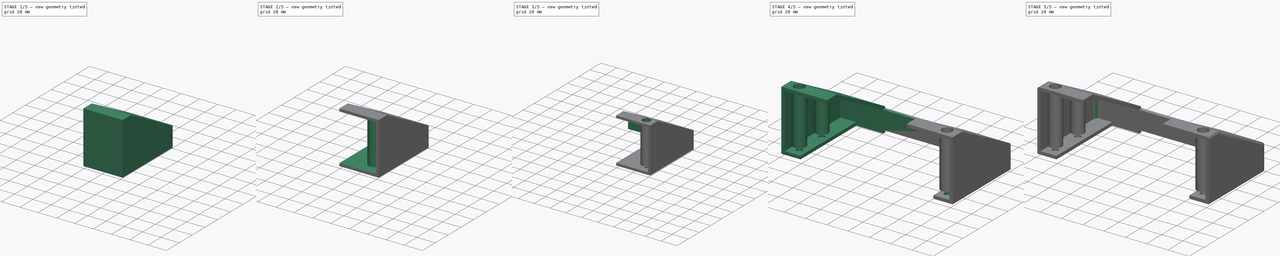
[diagram: build sequence overview — one tinted view per stage of 5, left to right]
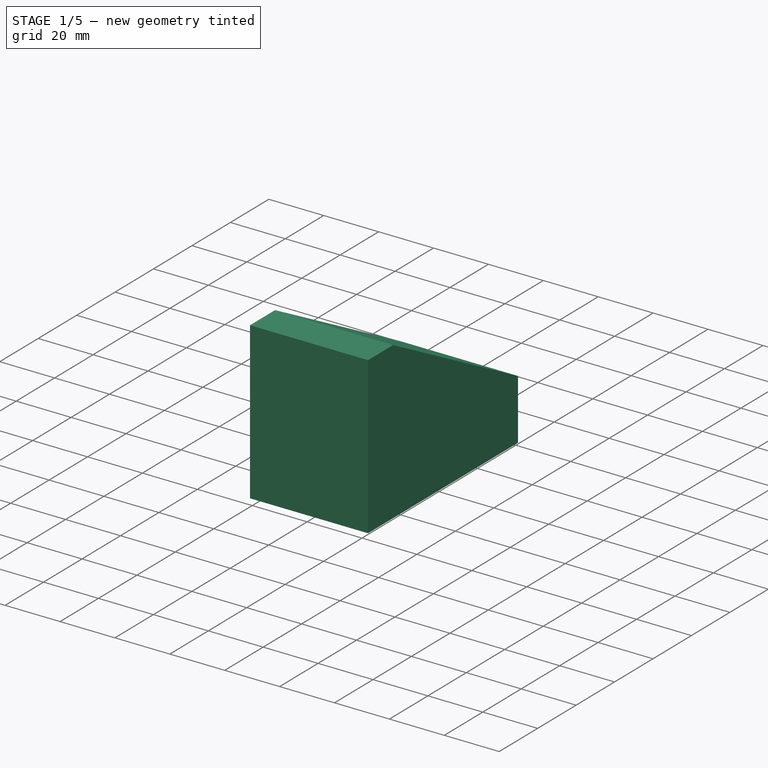
[diagram: stage 1 of 5 — iso view after this stage's code; geometry added in this stage tinted green]
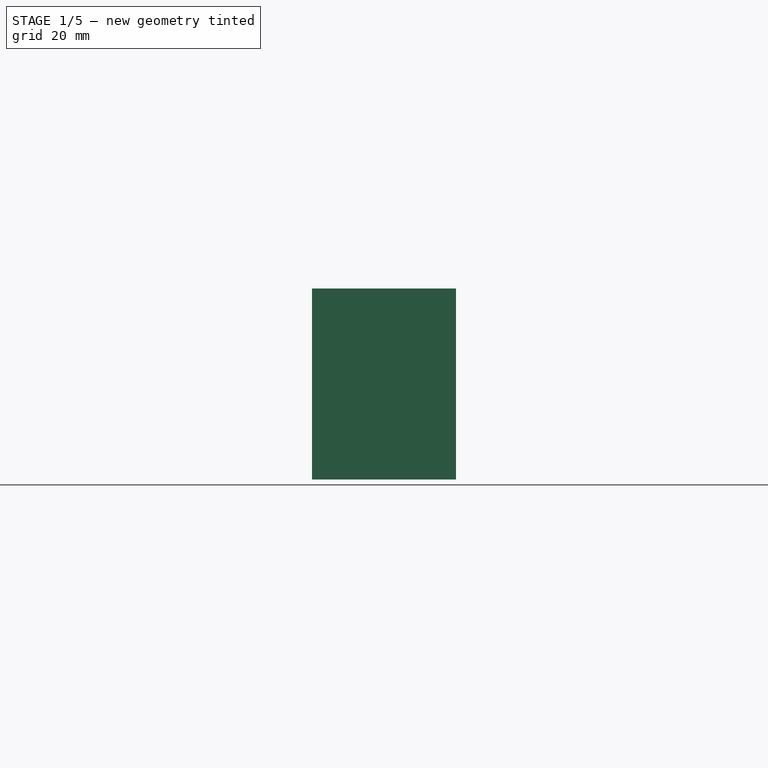
[diagram: stage 1 of 5 — front view after this stage's code; geometry added in this stage tinted green]
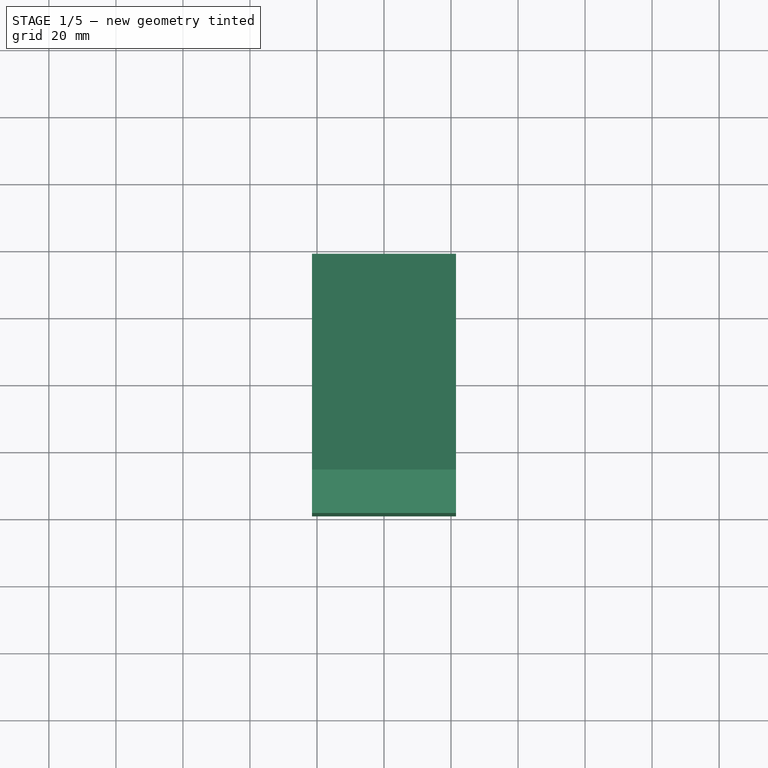
[diagram: stage 1 of 5 — top view after this stage's code; geometry added in this stage tinted green]
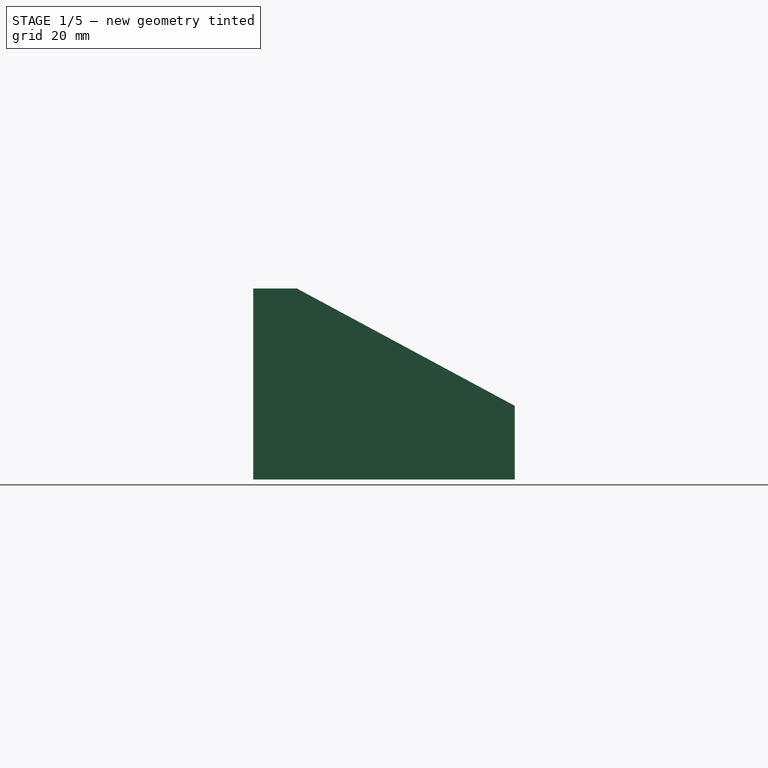
[diagram: stage 1 of 5 — right view after this stage's code; geometry added in this stage tinted green]
FCSTD DOCUMENT  (FreeCAD 0.21R33771 (Git))
Label: rearhull2
License: All rights reserved
LicenseURL: http://en.wikipedia.org/wiki/All_rights_reserved
objects: Sketcher::SketchObject×7, PartDesign::Pad×4, PartDesign::Pocket×4, PartDesign::Fillet×3, PartDesign::Plane×2, PartDesign::Hole×2, App::DocumentObjectGroupPython×1, PartDesign::Thickness×1, PartDesign::Mirrored×1, PartDesign::Body×1
note: 39 computed .brp shape members not serialized (recipe doc carries the construction recipe); baked Part::Feature solids carry a one-line shape summary decoded from their .brp

FEATURE [App::DocumentObjectGroupPython] ExplodedAssembly  # scripted group (container) (typed FeaturePython)
  AnimationStep = 0
  CurrentTrajectory = 0
  InAnimation = false
  RemoveAllTrajectories = false
  ResetAnimation = false
FEATURE [Sketcher::SketchObject] Sketch  label="BaseSketch"
  FullyConstrained = true
  MapMode = 5
  Support = -> [XY_Plane]
  sketch-geometry (4):
    g0: LineSegment StartX=-21.5 StartY=39 StartZ=0 EndX=21.5 EndY=39 EndZ=0
    g1: LineSegment StartX=21.5 StartY=39 StartZ=0 EndX=21.5 EndY=-39 EndZ=0
    g2: LineSegment StartX=21.5 StartY=-39 StartZ=0 EndX=-21.5 EndY=-39 EndZ=0
    g3: LineSegment StartX=-21.5 StartY=-39 StartZ=0 EndX=-21.5 EndY=39 EndZ=0
  constraints (11):
    c: Coincident(g0,g1)
    c: Coincident(g1,g2)
    c: Coincident(g2,g3)
    c: Coincident(g3,g0)
    c: Horizontal(g0)
    c: Horizontal(g2)
    c: Vertical(g1)
    c: Vertical(g3)
    c: DistanceY(g3,g3) = 78
    c: DistanceX(g2,g2) = 43
    c: Symmetric(g0,g1,g-1)
FEATURE [PartDesign::Pad] Pad
  Direction = (0,0,1)
  Length = 50
  Length2 = 10
  Profile = -> Sketch
  ReferenceAxis = -> Sketch [N_Axis]
  Type = 0
FEATURE [Sketcher::SketchObject] Sketch001  label="TopCutSketch001"
  FullyConstrained = true
  MapMode = 5
  Placement = pos=(0,0,0) rot=(0.57735,0.57735,0.57735;2.0944rad)
  Support = -> [YZ_Plane]
  sketch-geometry (7):
    g0: LineSegment StartX=-39 StartY=0 StartZ=0 EndX=39 EndY=0 EndZ=0
    g1: LineSegment StartX=39 StartY=0 StartZ=0 EndX=39 EndY=15 EndZ=0
    g2: LineSegment StartX=39 StartY=15 StartZ=0 EndX=-26 EndY=50 EndZ=0
    g3: LineSegment StartX=-26 StartY=50 StartZ=0 EndX=-39 EndY=50 EndZ=0
    g4: LineSegment StartX=-39 StartY=50 StartZ=0 EndX=-39 EndY=0 EndZ=0
    g5: LineSegment StartX=-26 StartY=50 StartZ=0 EndX=39 EndY=50 EndZ=0
    g6: LineSegment StartX=39 StartY=50 StartZ=0 EndX=39 EndY=15 EndZ=0
  constraints (19):
    c: PointOnObject(g0,g-1)
    c: Coincident(g0,g1)
    c: Vertical(g1)
    c: Coincident(g1,g2)
    c: Coincident(g2,g3)
    c: Horizontal(g3)
    c: Coincident(g3,g4)
    c: Vertical(g4)
    c: Coincident(g4,g0)
    c: DistanceY(g4,g4) = 50
    c: DistanceX(g0,g0) = 78
    c: Symmetric(g0,g0,g-2)
    c: DistanceY(g1,g1) = 15
    c: DistanceX(g2,g1) = 65
    c: Coincident(g2,g5)
    c: Horizontal(g5)
    c: Coincident(g5,g6)
    c: Vertical(g6)
    c: Coincident(g6,g1)
FEATURE [PartDesign::Pocket] Pocket
  BaseFeature = -> Pad
  Direction = (-1,2e-16,-3e-16)
  Length = 5
  Length2 = 5
  Midplane = true
  Profile = -> Sketch001
  ReferenceAxis = -> Sketch001 [N_Axis]
  Type = 1
FEATURE [PartDesign::Pad] Pad001
  BaseFeature = -> Pocket
  Direction = (0,0,-1)
  Length = 7
  Length2 = 10
  Profile = -> Pocket [Face2]
  Refine = true
  Type = 0
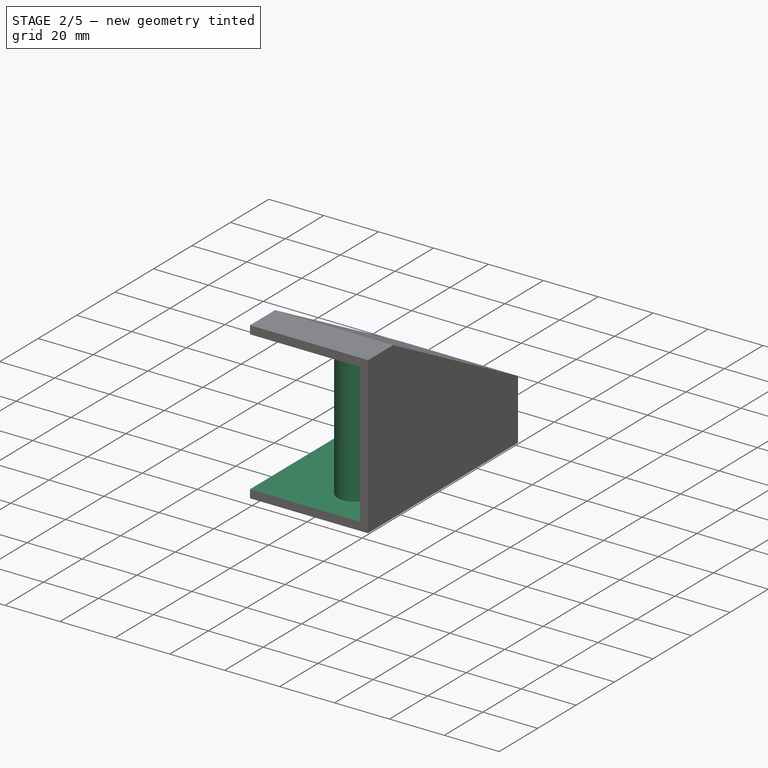
[diagram: stage 2 of 5 — iso view after this stage's code; geometry added in this stage tinted green]
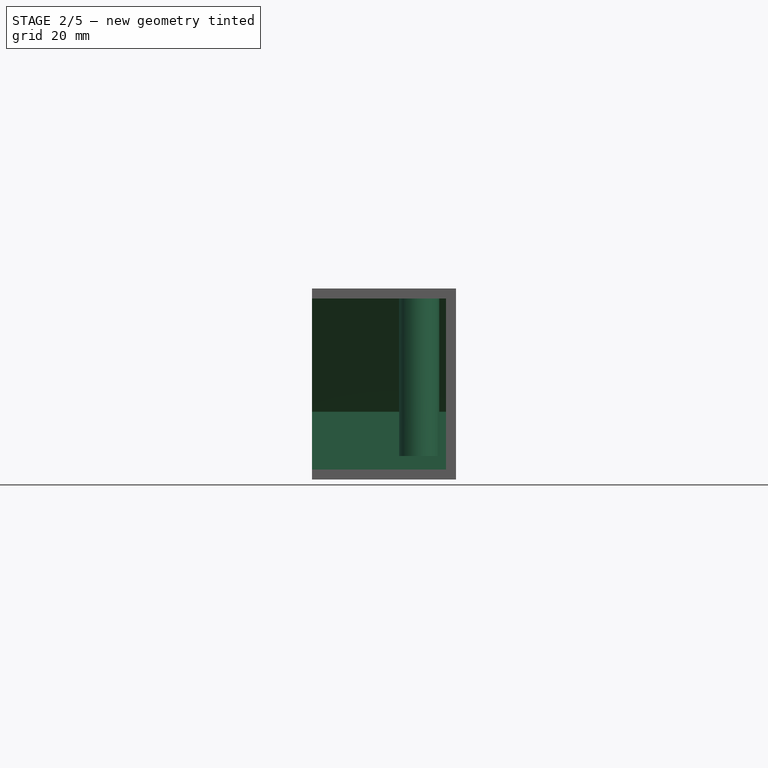
[diagram: stage 2 of 5 — front view after this stage's code; geometry added in this stage tinted green]
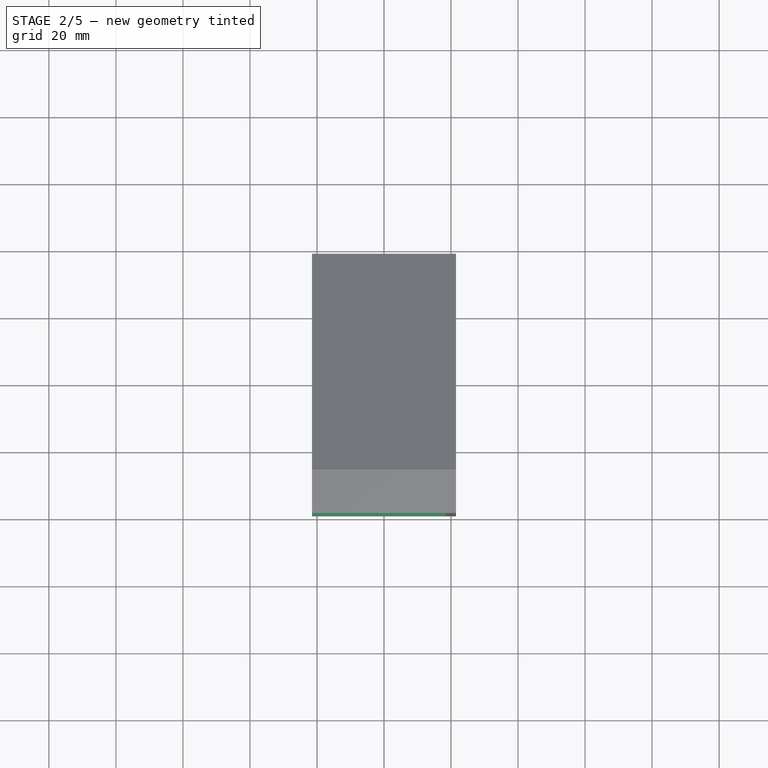
[diagram: stage 2 of 5 — top view after this stage's code; geometry added in this stage tinted green]
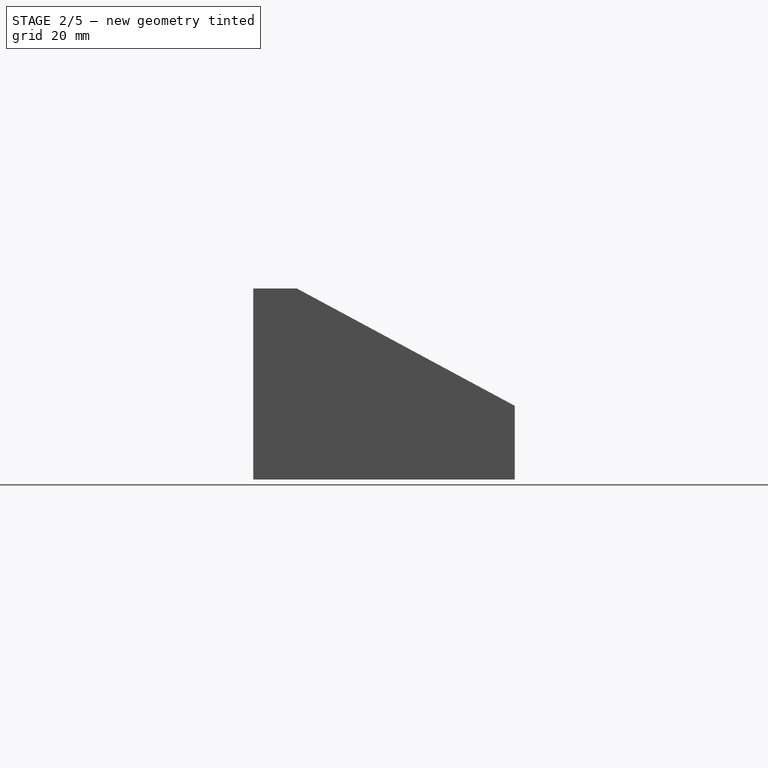
[diagram: stage 2 of 5 — right view after this stage's code; geometry added in this stage tinted green]
FEATURE [PartDesign::Thickness] Thickness
  Base = -> Pad001 [Face6,Face7]
  BaseFeature = -> Pad001
  Intersection = false
  Join = 0
  Mode = 0
  Reversed = true
  SupportTransform = false
  Value = 3
FEATURE [Sketcher::SketchObject] Sketch002
  FullyConstrained = true
  MapMode = 5
  Support = -> [XY_Plane]
  sketch-geometry (9):
    g0: Circle CenterX=10.5 CenterY=-0.5 CenterZ=0 NormalX=0 NormalY=0 NormalZ=1 AngleXU=0 Radius=6
    g1: Circle CenterX=10.5 CenterY=-30.5 CenterZ=0 NormalX=0 NormalY=0 NormalZ=1 AngleXU=0 Radius=6
    g2: LineSegment StartX=-21.5 StartY=39 StartZ=0 EndX=21.5 EndY=39 EndZ=0
    g3: LineSegment StartX=21.5 StartY=39 StartZ=0 EndX=21.5 EndY=-39 EndZ=0
    g4: LineSegment StartX=21.5 StartY=-39 StartZ=0 EndX=-21.5 EndY=-39 EndZ=0
    g5: LineSegment StartX=-21.5 StartY=-39 StartZ=0 EndX=-21.5 EndY=39 EndZ=0
    g6: LineSegment StartX=18.5 StartY=-39 StartZ=0 EndX=18.5 EndY=36 EndZ=0
    g7: LineSegment StartX=18.5 StartY=36 StartZ=0 EndX=-21.5 EndY=36 EndZ=0
    g8: LineSegment StartX=10.5 StartY=36 StartZ=0 EndX=10.5 EndY=-39 EndZ=0
  constraints (27):
    c: Equal(g1,g0)
    c: Vertical(g0,g1)
    c: Diameter(g0) = 12
    c: Coincident(g2,g3)
    c: Coincident(g3,g4)
    c: Coincident(g4,g5)
    c: Coincident(g5,g2)
    c: Horizontal(g4)
    c: Vertical(g5)
    c: DistanceX(g4,g4) = 43
    c: DistanceY(g3,g3) = 78
    c: Symmetric(g2,g2,g-2)
    c: Symmetric(g2,g3,g-1)
    c: PointOnObject(g6,g4)
    c: Vertical(g6)
    c: Coincident(g6,g7)
    c: Horizontal(g7)
    c: PointOnObject(g7,g5)
    c: DistanceY(g6,g2) = 3
    c: DistanceX(g6,g2) = 3
    c: PointOnObject(g8,g7)
    c: PointOnObject(g8,g4)
    c: Vertical(g8)
    c: DistanceX(g8,g6) = 8
    c: PointOnObject(g0,g8)
    c: DistanceY(g0,g6) = 36.5
    c: DistanceY(g1,g0) = 30
FEATURE [PartDesign::Pad] Pad002
  BaseFeature = -> Thickness
  Direction = (0,0,1)
  Length = 10
  Length2 = 10
  Profile = -> Sketch002
  ReferenceAxis = -> Sketch002 [N_Axis]
  Type = 3
  UpToFace = -> Thickness [Face4]
FEATURE [PartDesign::Pocket] Pocket001
  BaseFeature = -> Pad002
  Direction = (-1,2e-16,-3e-16)
  Length = 5
  Length2 = 5
  Midplane = true
  Profile = -> Sketch001
  ReferenceAxis = -> Sketch001 [N_Axis]
  Refine = true
  Type = 1
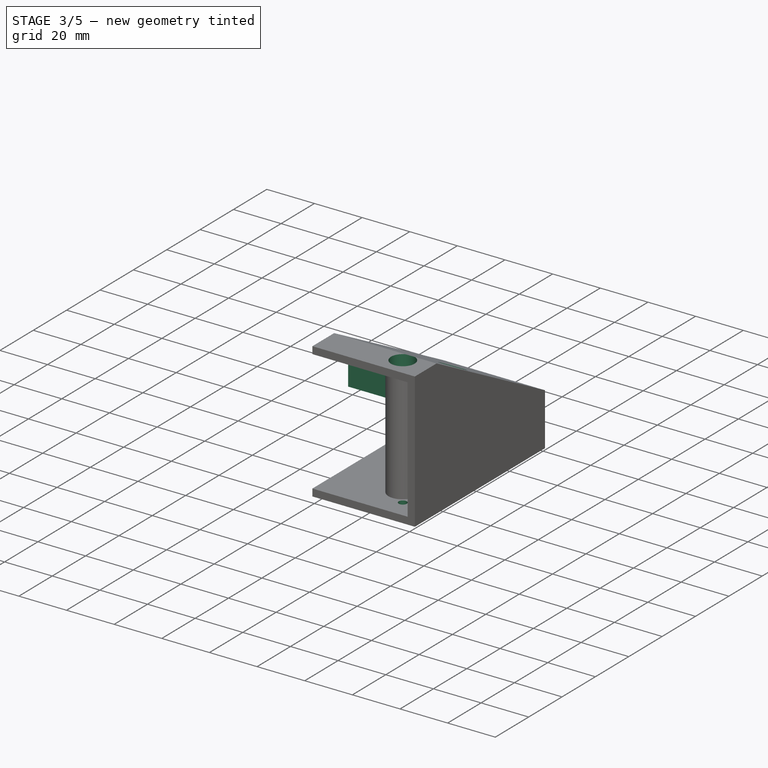
[diagram: stage 3 of 5 — iso view after this stage's code; geometry added in this stage tinted green]
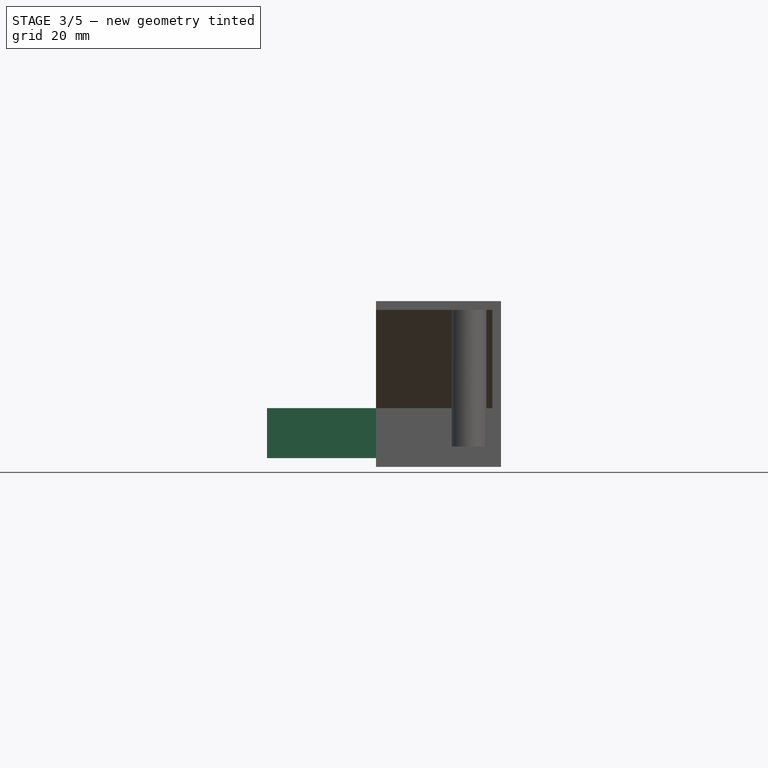
[diagram: stage 3 of 5 — front view after this stage's code; geometry added in this stage tinted green]
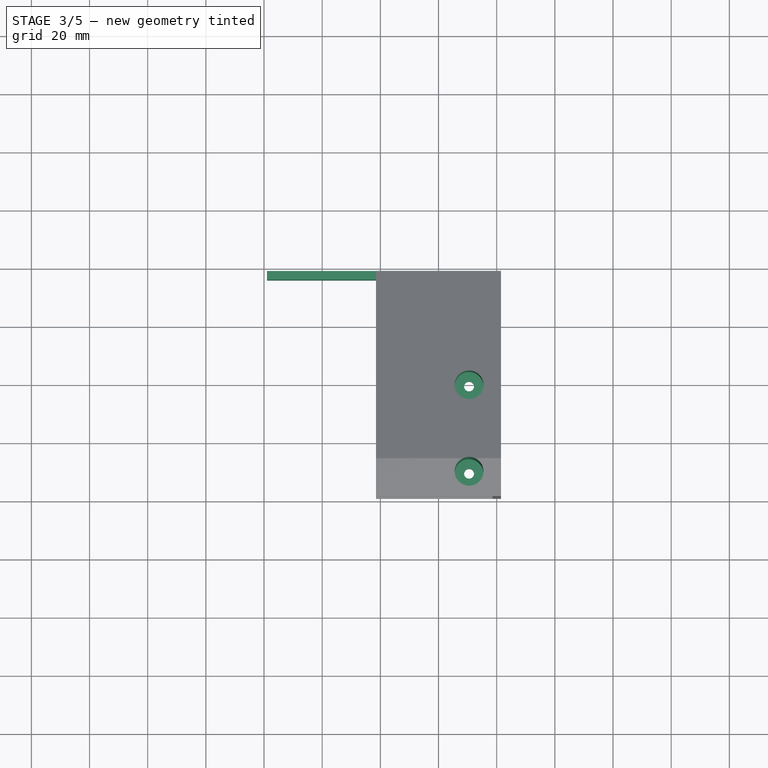
[diagram: stage 3 of 5 — top view after this stage's code; geometry added in this stage tinted green]
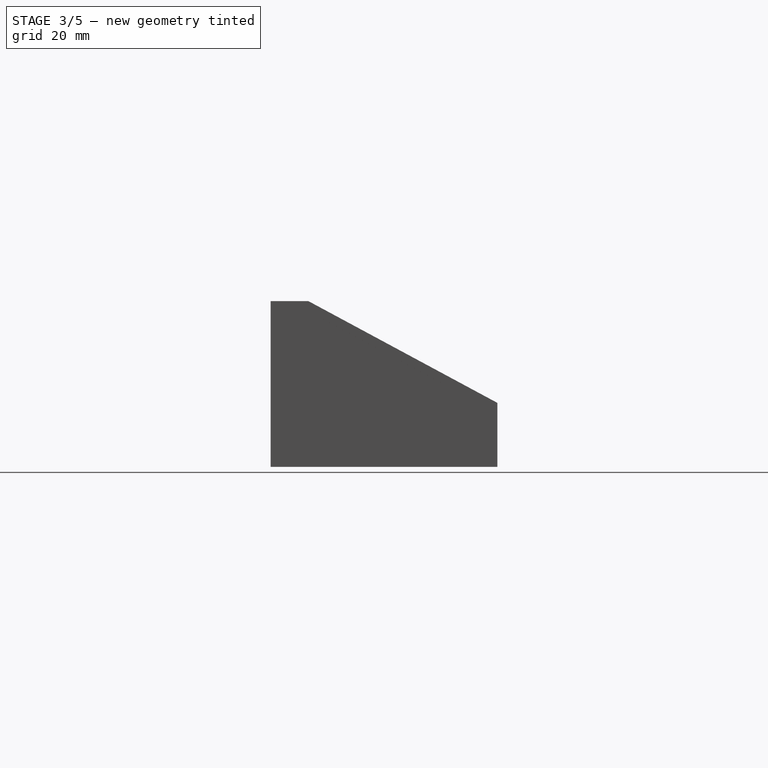
[diagram: stage 3 of 5 — right view after this stage's code; geometry added in this stage tinted green]
FEATURE [PartDesign::Plane] DatumPlane
  AttachmentOffset = pos=(0,0,2) rot=(0,0,1;0rad)
  Length = 187.155
  MapMode = 5
  Placement = pos=(0,0,2) rot=(0,0,1;0rad)
  ResizeMode = 0
  Support = -> [XY_Plane]
  Width = 100.655
FEATURE [Sketcher::SketchObject] Sketch003  label="ChassisPlateHolesSketch"
  ExternalGeometry = -> [Sketch002]
  FullyConstrained = true
  MapMode = 5
  Placement = pos=(0,0,2) rot=(0,0,1;0rad)
  Support = -> [DatumPlane]
  sketch-geometry (2):
    g0: Circle CenterX=10.5 CenterY=-0.5 CenterZ=0 NormalX=0 NormalY=0 NormalZ=1 AngleXU=0 Radius=1.25
    g1: Circle CenterX=10.5 CenterY=-30.5 CenterZ=0 NormalX=0 NormalY=0 NormalZ=1 AngleXU=0 Radius=1.25
  constraints (4):
    c: Coincident(g0,g-3)
    c: Coincident(g1,g-4)
    c: Equal(g1,g0)
    c: Diameter(g0) = 2.5
FEATURE [PartDesign::Hole] Hole  label="ChassisPlateHoles"
  BaseFeature = -> Pocket001
  CustomThreadClearance = 0
  Depth = 25
  DepthType = 0
  Diameter = 3.4
  DrillForDepth = false
  DrillPoint = 1
  DrillPointAngle = 118
  HoleCutCountersinkAngle = 90
  HoleCutCustomValues = false
  HoleCutDepth = 0
  HoleCutDiameter = 6.1
  HoleCutType = 0
  ModelThread = false
  Profile = -> Sketch003
  Tapered = false
  TaperedAngle = 90
  ThreadClass = 0
  ThreadDepth = 25
  ThreadDepthType = 0
  ThreadDirection = 0
  ThreadFit = 0
  ThreadSize = 9
  ThreadType = 1
  Threaded = false
  UseCustomThreadClearance = false
FEATURE [PartDesign::Hole] Hole001
  BaseFeature = -> Hole
  CustomThreadClearance = 0
  Depth = 213.605
  DepthType = 1
  Diameter = 9.9
  DrillForDepth = false
  DrillPoint = 1
  DrillPointAngle = 118
  HoleCutCountersinkAngle = 90
  HoleCutCustomValues = false
  HoleCutDepth = 0
  HoleCutDiameter = 6.1
  HoleCutType = 0
  ModelThread = false
  Profile = -> Sketch003
  Reversed = true
  Tapered = false
  TaperedAngle = 90
  ThreadClass = 0
  ThreadDepth = 213.605
  ThreadDepthType = 0
  ThreadDirection = 0
  ThreadFit = 0
  ThreadSize = 17
  ThreadType = 1
  Threaded = false
  UseCustomThreadClearance = false
FEATURE [Sketcher::SketchObject] Sketch004
  ExternalGeometry = -> [Hole001]
  FullyConstrained = true
  MapMode = 5
  Placement = pos=(-21.5,-2e-15,-4.3e-15) rot=(0.57735,-0.57735,-0.57735;2.0944rad)
  Support = -> [Hole001]
  sketch-geometry (4):
    g0: LineSegment StartX=-36 StartY=13.2081 StartZ=0 EndX=-39 EndY=13.2081 EndZ=0
    g1: LineSegment StartX=-36 StartY=13.2081 StartZ=0 EndX=-36 EndY=-4 EndZ=0
    g2: LineSegment StartX=-39 StartY=13.2081 StartZ=0 EndX=-39 EndY=-4 EndZ=0
    g3: LineSegment StartX=-39 StartY=-4 StartZ=0 EndX=-36 EndY=-4 EndZ=0
  constraints (10):
    c: Coincident(g-4,g0)
    c: PointOnObject(g0,g-3)
    c: Horizontal(g0)
    c: Coincident(g0,g1)
    c: Coincident(g1,g-4)
    c: Coincident(g0,g2)
    c: PointOnObject(g2,g-3)
    c: Coincident(g2,g3)
    c: Coincident(g3,g1)
    c: Horizontal(g3)
FEATURE [PartDesign::Pad] Pad003
  BaseFeature = -> Hole001
  Direction = (-1,1e-16,-1e-16)
  Length = 37.5
  Length2 = 10
  Profile = -> Sketch004
  ReferenceAxis = -> Sketch004 [N_Axis]
  Type = 0
  expr: Length = 155 mm / 2 - 40 mm
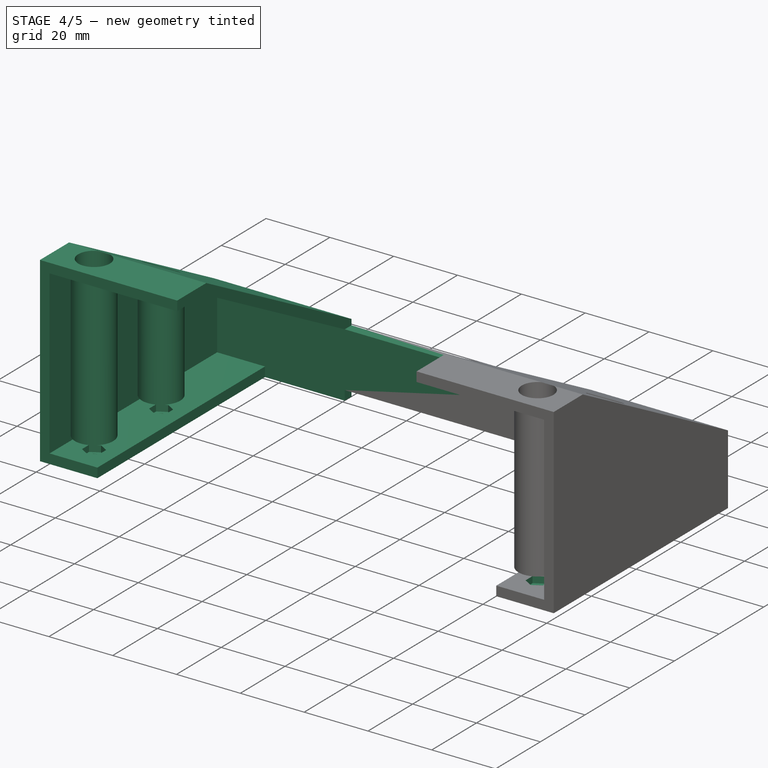
[diagram: stage 4 of 5 — iso view after this stage's code; geometry added in this stage tinted green]
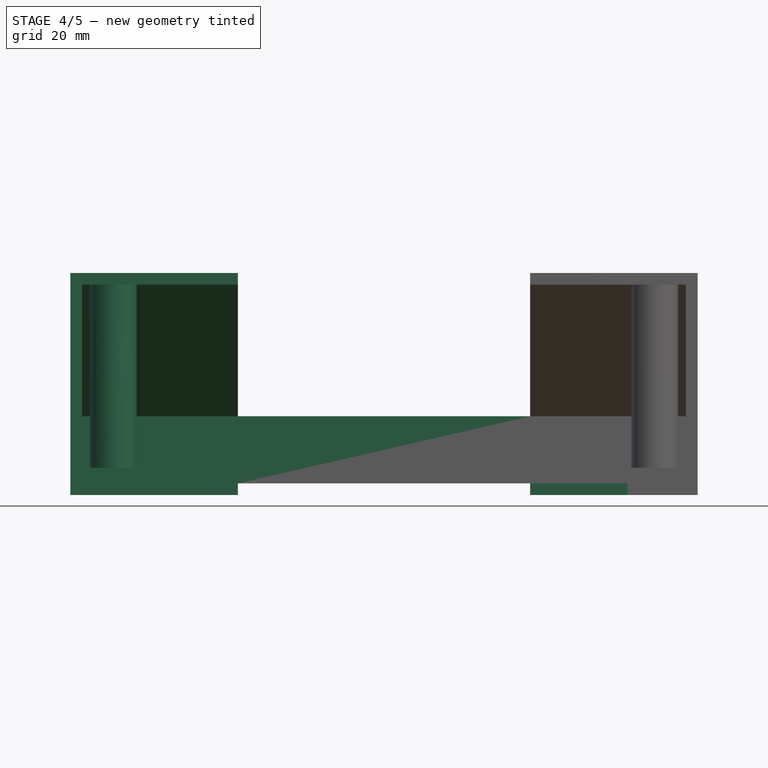
[diagram: stage 4 of 5 — front view after this stage's code; geometry added in this stage tinted green]
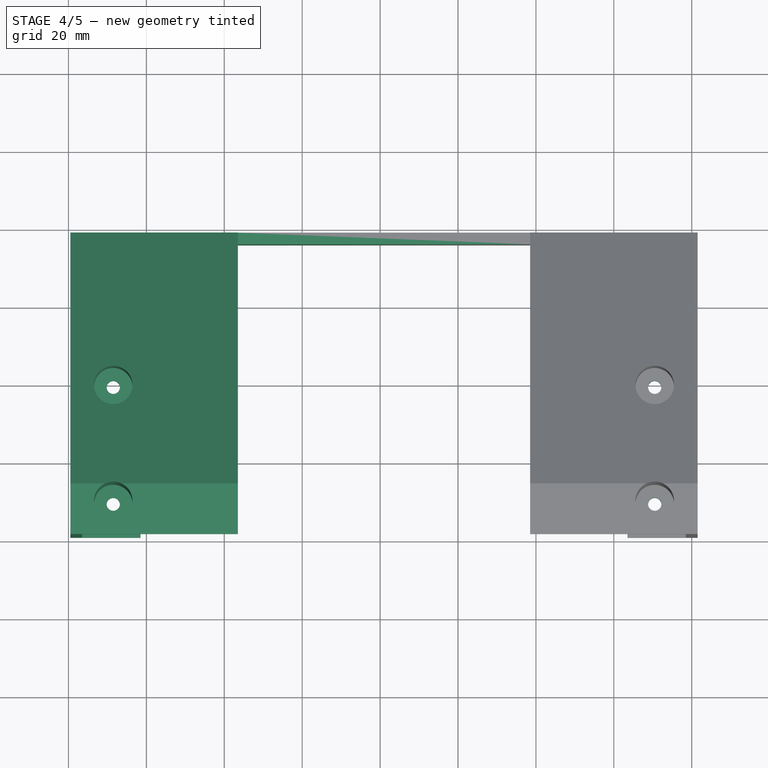
[diagram: stage 4 of 5 — top view after this stage's code; geometry added in this stage tinted green]
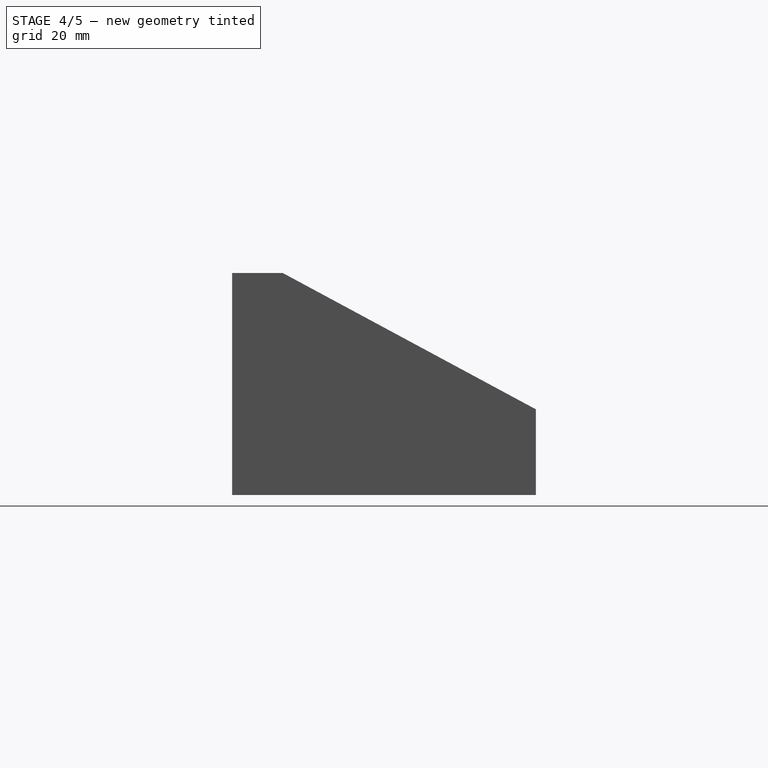
[diagram: stage 4 of 5 — right view after this stage's code; geometry added in this stage tinted green]
FEATURE [Sketcher::SketchObject] Sketch005
  ExternalGeometry = -> [Pad003]
  FullyConstrained = true
  MapMode = 5
  Placement = pos=(-21.5,-2e-15,-4.3e-15) rot=(0.57735,-0.57735,-0.57735;2.0944rad)
  Support = -> [Pad003]
  sketch-geometry (4):
    g0: LineSegment StartX=-36 StartY=-4 StartZ=0 EndX=39 EndY=-4 EndZ=0
    g1: LineSegment StartX=39 StartY=-4 StartZ=0 EndX=39 EndY=-7 EndZ=0
    g2: LineSegment StartX=39 StartY=-7 StartZ=0 EndX=-36 EndY=-7 EndZ=0
    g3: LineSegment StartX=-36 StartY=-7 StartZ=0 EndX=-36 EndY=-4 EndZ=0
  constraints (10):
    c: Coincident(g0,g1)
    c: Coincident(g1,g2)
    c: Coincident(g2,g3)
    c: Coincident(g3,g0)
    c: Horizontal(g0)
    c: Horizontal(g2)
    c: Vertical(g1)
    c: Vertical(g3)
    c: Coincident(g0,g-3)
    c: Coincident(g1,g-4)
FEATURE [PartDesign::Pocket] Pocket002  label="ChassisBaseCutout"
  BaseFeature = -> Pad003
  Direction = (1,-1e-16,1e-16)
  Length = 25
  Length2 = 5
  Profile = -> Sketch005
  ReferenceAxis = -> Sketch005 [N_Axis]
  Type = 0
FEATURE [Sketcher::SketchObject] Sketch006
  ExternalGeometry = -> [Pocket002]
  FullyConstrained = true
  MapMode = 5
  Placement = pos=(0,0,-4) rot=(0,0,1;0rad)
  Support = -> [Pocket002]
  sketch-geometry (14):
    g0: LineSegment StartX=10.5 StartY=-3.61769 StartZ=0 EndX=13.2 EndY=-2.05885 EndZ=0
    g1: LineSegment StartX=13.2 StartY=-2.05885 StartZ=0 EndX=13.2 EndY=1.05885 EndZ=0
    g2: LineSegment StartX=13.2 StartY=1.05885 StartZ=0 EndX=10.5 EndY=2.61769 EndZ=0
    g3: LineSegment StartX=10.5 StartY=2.61769 StartZ=0 EndX=7.8 EndY=1.05885 EndZ=0
    g4: LineSegment StartX=7.8 StartY=1.05885 StartZ=0 EndX=7.8 EndY=-2.05885 EndZ=0
    g5: LineSegment StartX=7.8 StartY=-2.05885 StartZ=0 EndX=10.5 EndY=-3.61769 EndZ=0
    g6: Circle CenterX=10.5 CenterY=-0.5 CenterZ=0 NormalX=0 NormalY=0 NormalZ=1 AngleXU=0 Radius=3.11769
    g7: LineSegment StartX=10.5 StartY=-33.6177 StartZ=0 EndX=13.2 EndY=-32.0588 EndZ=0
    g8: LineSegment StartX=13.2 StartY=-32.0588 StartZ=0 EndX=13.2 EndY=-28.9412 EndZ=0
    g9: LineSegment StartX=13.2 StartY=-28.9412 StartZ=0 EndX=10.5 EndY=-27.3823 EndZ=0
    g10: LineSegment StartX=10.5 StartY=-27.3823 StartZ=0 EndX=7.8 EndY=-28.9412 EndZ=0
    g11: LineSegment StartX=7.8 StartY=-28.9412 StartZ=0 EndX=7.8 EndY=-32.0588 EndZ=0
    g12: LineSegment StartX=7.8 StartY=-32.0588 StartZ=0 EndX=10.5 EndY=-33.6177 EndZ=0
    g13: Circle CenterX=10.5 CenterY=-30.5 CenterZ=0 NormalX=0 NormalY=0 NormalZ=1 AngleXU=0 Radius=3.11769
  constraints (32):
    c: Coincident(g0,g1)
    c: Coincident(g1,g2)
    c: Coincident(g2,g3)
    c: Coincident(g3,g4)
    c: Coincident(g4,g5)
    c: Coincident(g5,g0)
    c: Equal(g0, g1-g5) x5
    c: PointOnObject(g0,g6)
    c: PointOnObject(g1,g6)
    c: PointOnObject(g2,g6)
    c: PointOnObject(g3,g6)
    c: PointOnObject(g4,g6)
    c: PointOnObject(g5,g6)
    c: Coincident(g6,g-3)
    c: Coincident(g7,g8)
    c: Coincident(g8,g9)
    c: Coincident(g9,g10)
    c: Coincident(g10,g11)
    c: Coincident(g11,g12)
    c: Coincident(g12,g7)
    c: Equal(g7, g8-g12) x5
    c: PointOnObject(g7,g13)
    c: PointOnObject(g8,g13)
    c: PointOnObject(g9,g13)
    c: PointOnObject(g10,g13)
    c: PointOnObject(g11,g13)
    c: PointOnObject(g12,g13)
    c: Coincident(g13,g-4)
    c: Vertical(g8)
    c: Vertical(g1)
    c: Equal(g6,g13)
    c: DistanceX(g3,g1) = 5.4
FEATURE [PartDesign::Pocket] Pocket003  label="NutPockets"
  BaseFeature = -> Pocket002
  Direction = (0,0,-1)
  Length = 2
  Length2 = 5
  Profile = -> Sketch006
  ReferenceAxis = -> Sketch006 [N_Axis]
  Refine = true
  Type = 0
FEATURE [PartDesign::Plane] DatumPlane001
  Length = 93.2971
  MapMode = 5
  Placement = pos=(-59,3.49e-14,-6.1e-15) rot=(-0.57735,0.57735,0.57735;4.18879rad)
  ResizeMode = 0
  Support = -> [Pocket003]
  Width = 90.2971
FEATURE [PartDesign::Mirrored] Mirrored
  BaseFeature = -> Pocket003
  MirrorPlane = -> DatumPlane001
  Originals = -> [Pad,Pocket,Pad001,Thickness,Pad002,Pocket001,Hole,Pad003,Hole001,Pocket002,Pocket003]
  Refine = true
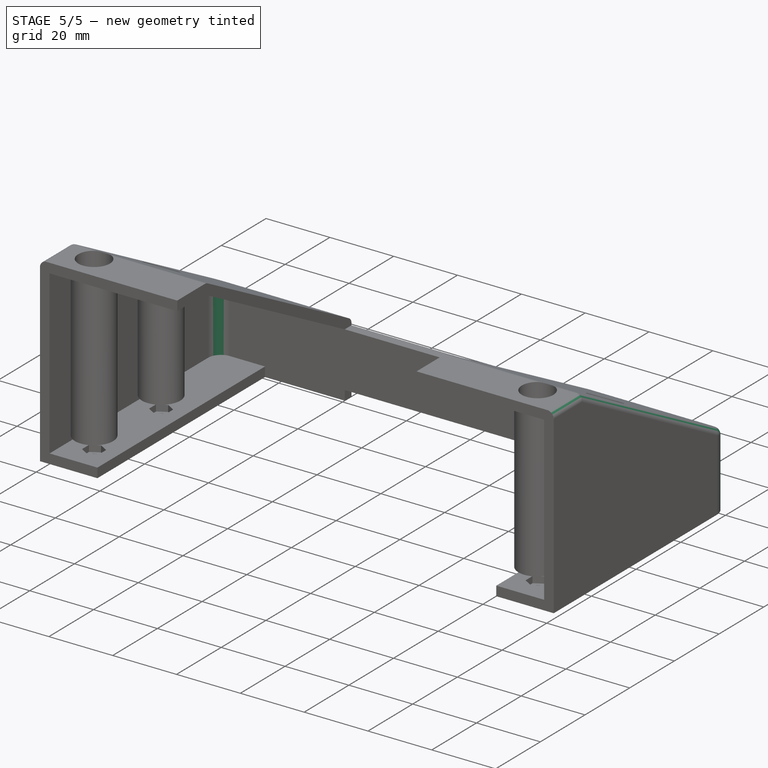
[diagram: stage 5 of 5 — iso view after this stage's code; geometry added in this stage tinted green]
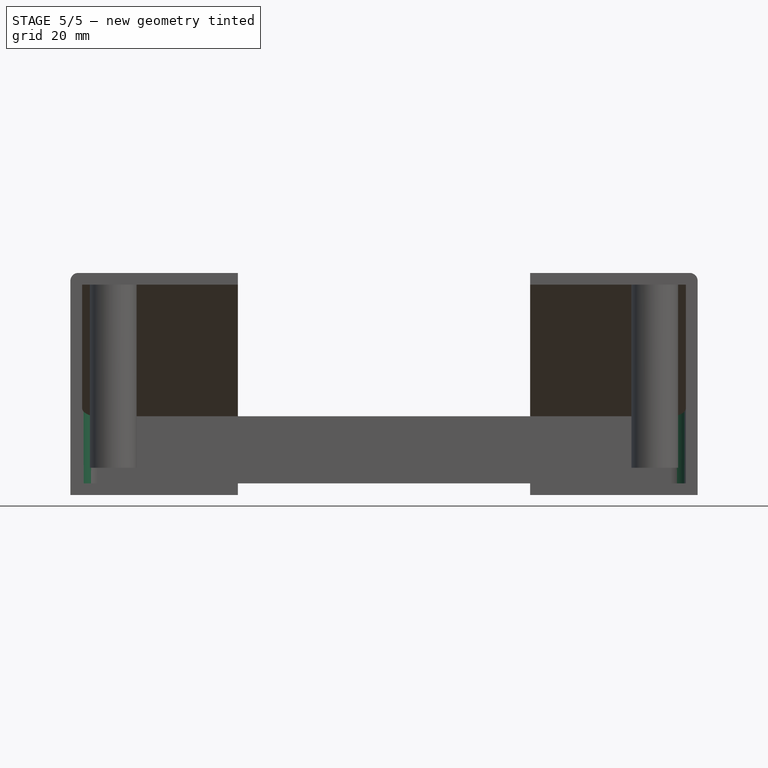
[diagram: stage 5 of 5 — front view after this stage's code; geometry added in this stage tinted green]
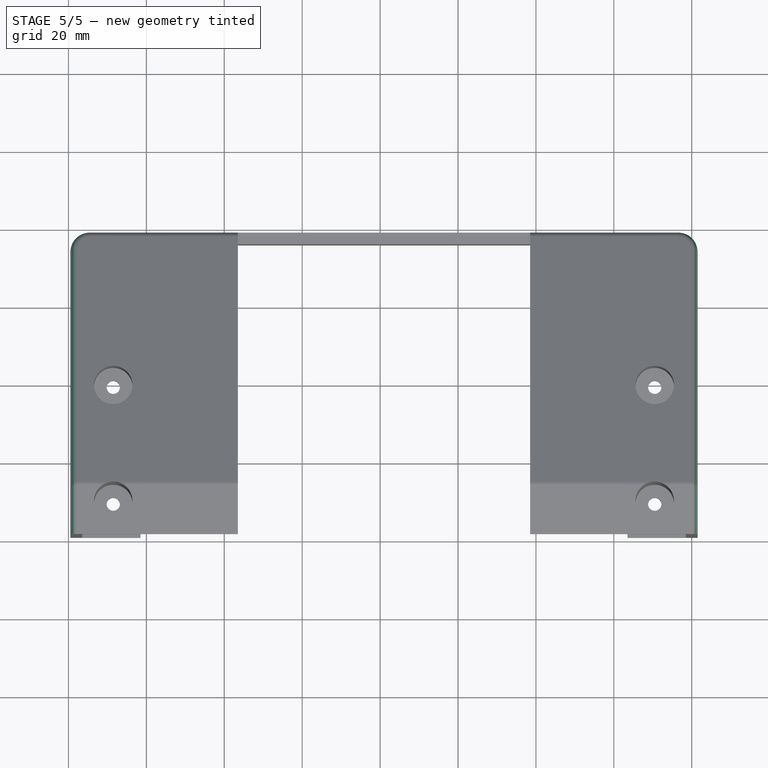
[diagram: stage 5 of 5 — top view after this stage's code; geometry added in this stage tinted green]
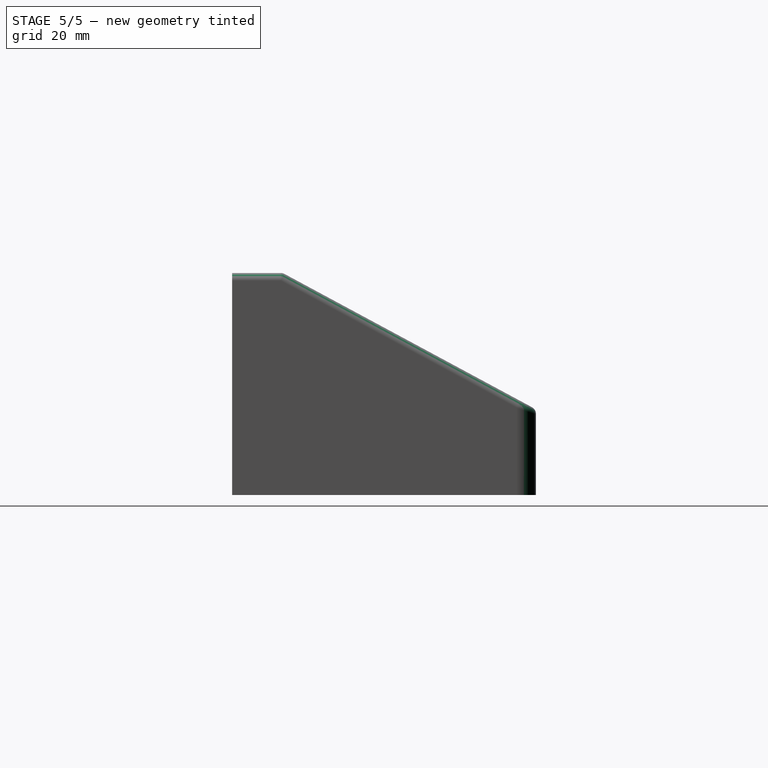
[diagram: stage 5 of 5 — right view after this stage's code; geometry added in this stage tinted green]
FEATURE [PartDesign::Fillet] Fillet
  Base = -> Mirrored [Edge41,Edge123]
  BaseFeature = -> Mirrored
  Radius = 4
  SupportTransform = false
  UseAllEdges = false
FEATURE [PartDesign::Fillet] Fillet001
  Base = -> Fillet [Edge105,Edge104]
  BaseFeature = -> Fillet
  Radius = 5
  SupportTransform = false
  UseAllEdges = false
FEATURE [PartDesign::Fillet] Fillet002
  Base = -> Fillet001 [Edge18,Edge25,Edge79,Edge26,Edge10,Edge51,Edge53,Edge56,Edge144,Edge77]
  BaseFeature = -> Fillet001
  Radius = 2
  SupportTransform = false
  UseAllEdges = false
FEATURE [PartDesign::Body] Body
  Group = -> [Sketch,Pad,Sketch001,Pocket,Pad001,Thickness,Sketch002,Pad002,Pocket001,DatumPlane,Sketch003,Hole,Hole001,Sketch004,Pad003,Sketch005,Pocket002,Sketch006,Pocket003,DatumPlane001,Mirrored,Fillet,Fillet001,Fillet002]
  Origin = -> Origin
  Tip = -> Fillet002
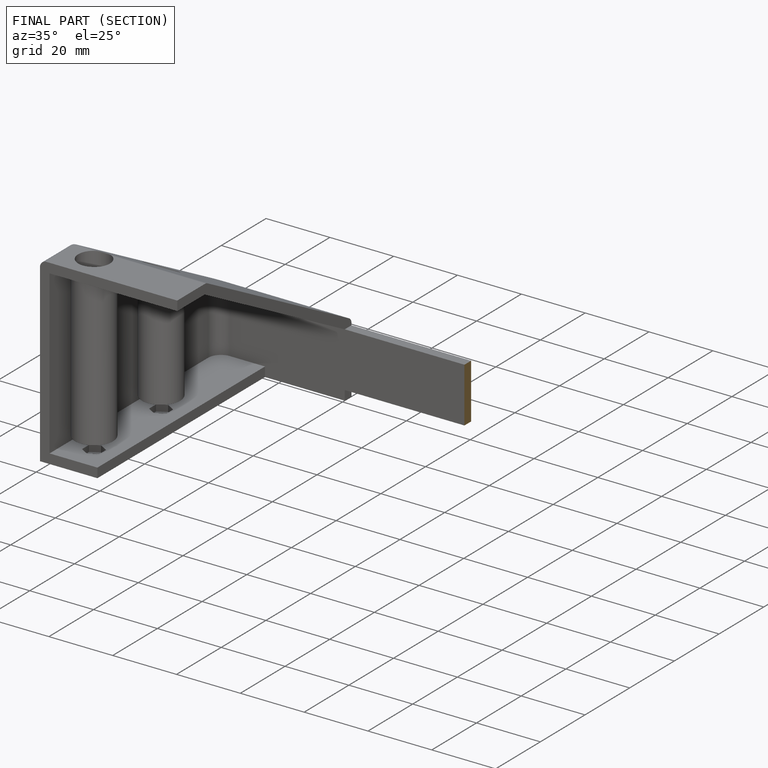
[diagram: finished part — half-section view (interior)]
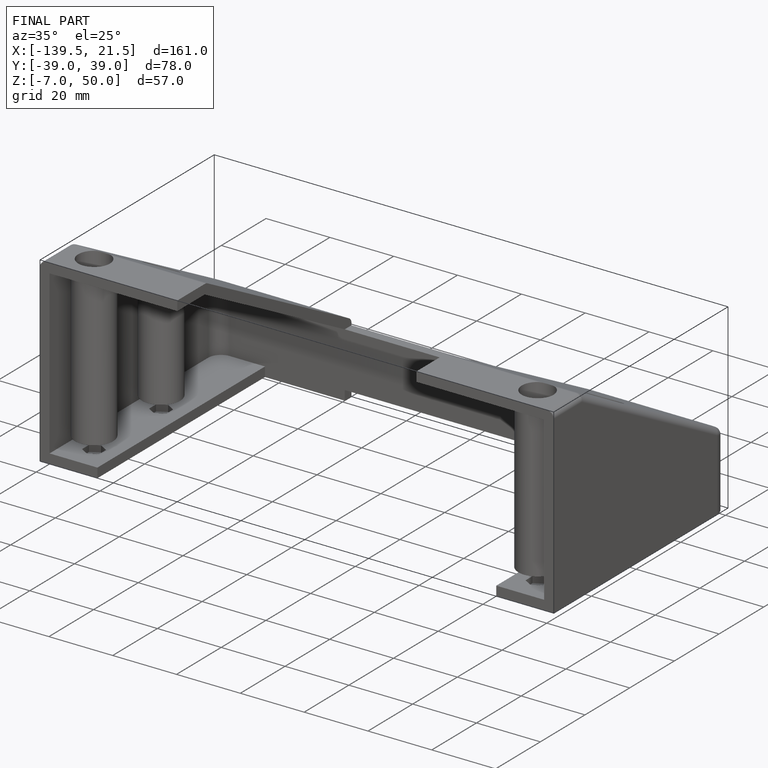
[diagram: finished part — iso view with bounding-box wireframe]
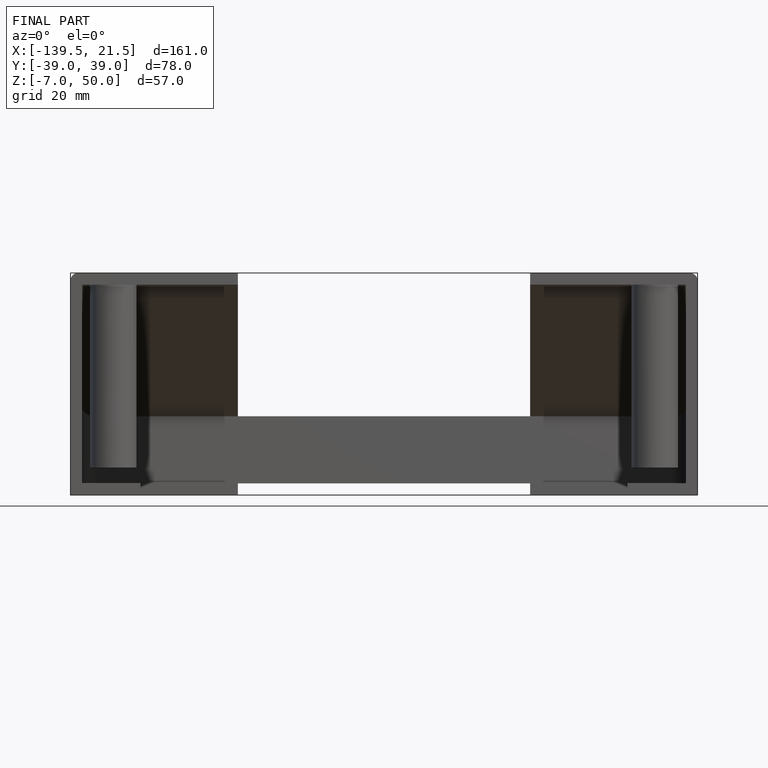
[diagram: finished part — front view with bounding-box wireframe]
